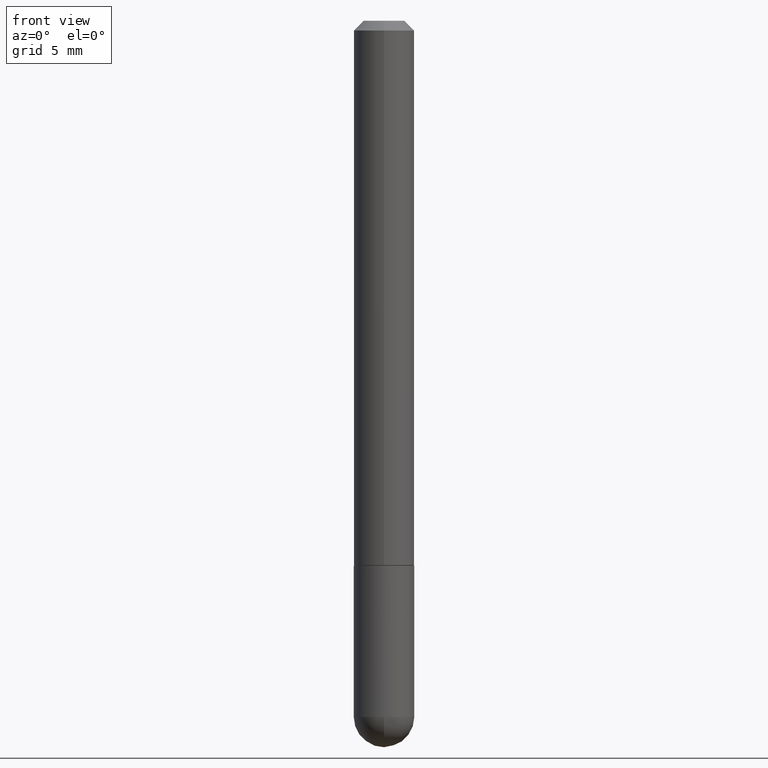
[diagram: clean part render]
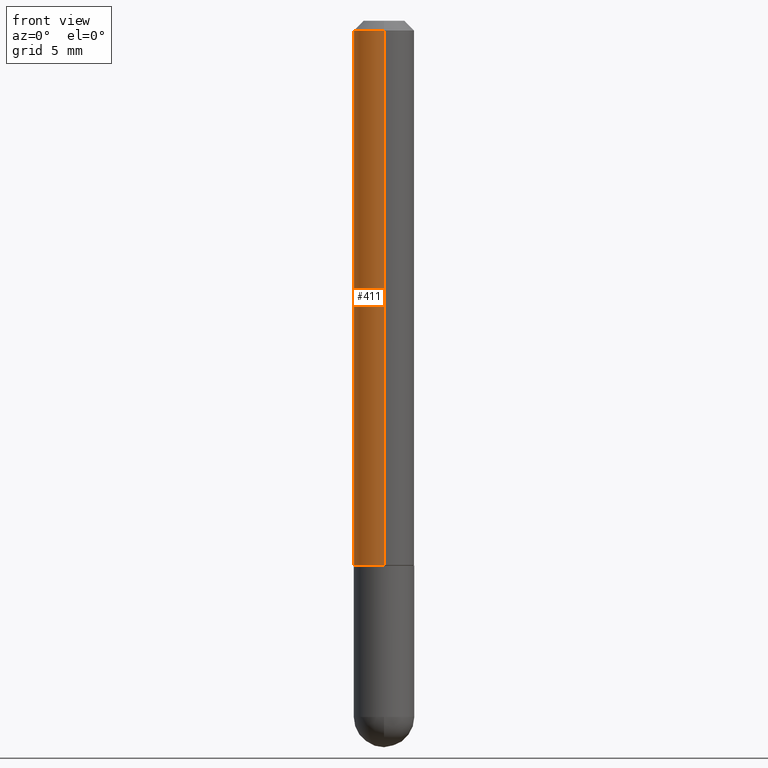
[diagram: same view with one face highlighted and labeled with its STEP entity id]
A machine part, front view. The second image highlights one B-rep face of the part: STEP entity #411.
In plain terms, the highlighted cylindrical surface (edge-blend (fillet) strip) has radius 1.5875 mm, axis along (-0, 0, 1).
Its self-contained STEP definition (entity closure, byte-faithful):
#31 = VERTEX_POINT ( 'NONE', #321 ) ;
#33 = VECTOR ( 'NONE', #89, 39.37007874015748143 ) ;
#35 = DIRECTION ( 'NONE',  ( -2.466205763382440609E-29, 3.461784835862300242E-15, 1.000000000000000000 ) ) ;
#55 = CARTESIAN_POINT ( 'NONE',  ( 4.364351673553917187E-16, 0.06249999999999988204, -0.02000000000000028491 ) ) ;
#58 = CARTESIAN_POINT ( 'NONE',  ( -4.364351673553916201E-16, -0.06250000000000000000, 2.163615522413937405E-16 ) ) ;
#59 = DIRECTION ( 'NONE',  ( -6.982962677686265922E-15, -1.000000000000000000, 3.483106191921938315E-15 ) ) ;
#68 = DIRECTION ( 'NONE',  ( -2.466205763382440609E-29, 3.461784835862300242E-15, 1.000000000000000000 ) ) ;
#76 = ORIENTED_EDGE ( 'NONE', *, *, #230, .F. ) ;
#80 = EDGE_LOOP ( 'NONE', ( #76, #334, #116, #248 ) ) ;
#81 = VECTOR ( 'NONE', #318, 39.37007874015748143 ) ;
#85 = CARTESIAN_POINT ( 'NONE',  ( -4.287811248607198352E-16, -0.06250000000000001388, -0.01999999999999985123 ) ) ;
#89 = DIRECTION ( 'NONE',  ( -2.466205763382440609E-29, 3.461784835862300242E-15, 1.000000000000000000 ) ) ;
#98 = DIRECTION ( 'NONE',  ( -2.466205763382440609E-29, 3.461784835862300242E-15, 1.000000000000000000 ) ) ;
#116 = ORIENTED_EDGE ( 'NONE', *, *, #135, .T. ) ;
#117 = LINE ( 'NONE', #288, #33 ) ;
#134 = DIRECTION ( 'NONE',  ( -6.982962677686265133E-15, -1.000000000000000000, 4.370956789862817205E-15 ) ) ;
#135 = EDGE_CURVE ( 'NONE', #31, #239, #159, .T. ) ;
#146 = CIRCLE ( 'NONE', #179, 0.06250000000000005551 ) ;
#159 = LINE ( 'NONE', #58, #81 ) ;
#176 = EDGE_CURVE ( 'NONE', #274, #239, #207, .T. ) ;
#179 = AXIS2_PLACEMENT_3D ( 'NONE', #325, #98, #134 ) ;
#200 = DIRECTION ( 'NONE',  ( -6.982962677686265922E-15, -1.000000000000000000, 3.461784835862299847E-15 ) ) ;
#207 = CIRCLE ( 'NONE', #254, 0.06249999999999995143 ) ;
#226 = CARTESIAN_POINT ( 'NONE',  ( 4.440892098500769143E-16, 0.06249999999999615585, -1.124000000000000332 ) ) ;
#230 = EDGE_CURVE ( 'NONE', #308, #274, #117, .T. ) ;
#232 = FACE_OUTER_BOUND ( 'NONE', #80, .T. ) ;
#234 = CARTESIAN_POINT ( 'NONE',  ( 0.000000000000000000, 0.000000000000000000, 0.000000000000000000 ) ) ;
#239 = VERTEX_POINT ( 'NONE', #85 ) ;
#248 = ORIENTED_EDGE ( 'NONE', *, *, #176, .F. ) ;
#254 = AXIS2_PLACEMENT_3D ( 'NONE', #324, #35, #59 ) ;
#274 = VERTEX_POINT ( 'NONE', #55 ) ;
#288 = CARTESIAN_POINT ( 'NONE',  ( 4.440892098500625669E-16, 0.06250000000000000000, -2.163615522413937405E-16 ) ) ;
#308 = VERTEX_POINT ( 'NONE', #226 ) ;
#318 = DIRECTION ( 'NONE',  ( -2.466205763382440609E-29, 3.461784835862300242E-15, 1.000000000000000000 ) ) ;
#321 = CARTESIAN_POINT ( 'NONE',  ( -4.364351673553642565E-16, -0.06250000000000394129, -1.123999999999999888 ) ) ;
#324 = CARTESIAN_POINT ( 'NONE',  ( 4.932411526764897788E-31, -6.923569671724623656E-17, -0.02000000000000006981 ) ) ;
#325 = CARTESIAN_POINT ( 'NONE',  ( 2.772015278041863825E-29, -3.891046155509226174E-15, -1.124000000000000110 ) ) ;
#334 = ORIENTED_EDGE ( 'NONE', *, *, #356, .T. ) ;
#356 = EDGE_CURVE ( 'NONE', #308, #31, #146, .T. ) ;
#360 = AXIS2_PLACEMENT_3D ( 'NONE', #234, #68, #200 ) ;
#410 = CYLINDRICAL_SURFACE ( 'NONE', #360, 0.06250000000000000000 ) ;
#411 = ADVANCED_FACE ( 'NONE', ( #232 ), #410, .T. ) ;